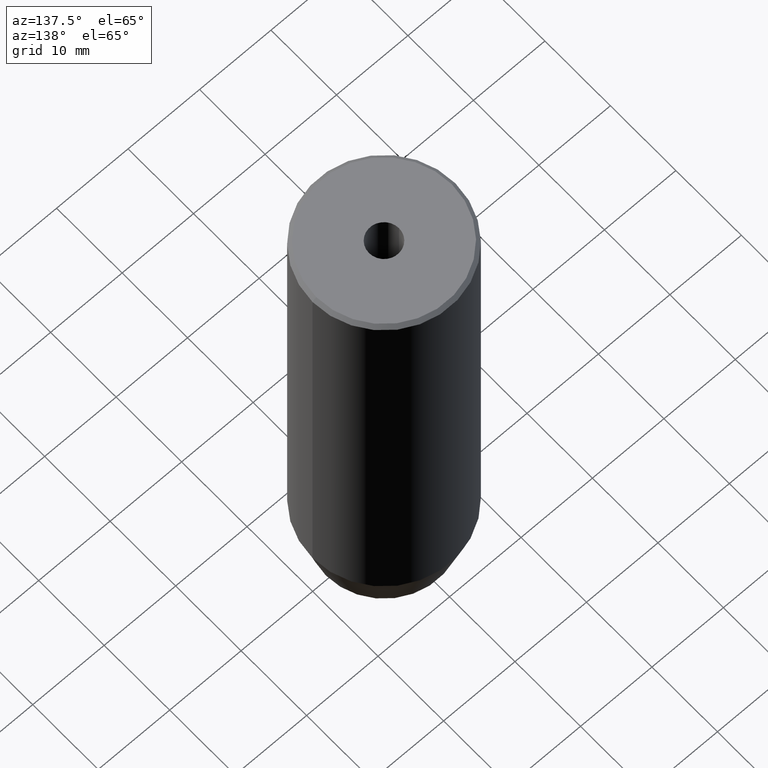
[diagram: clean part render]
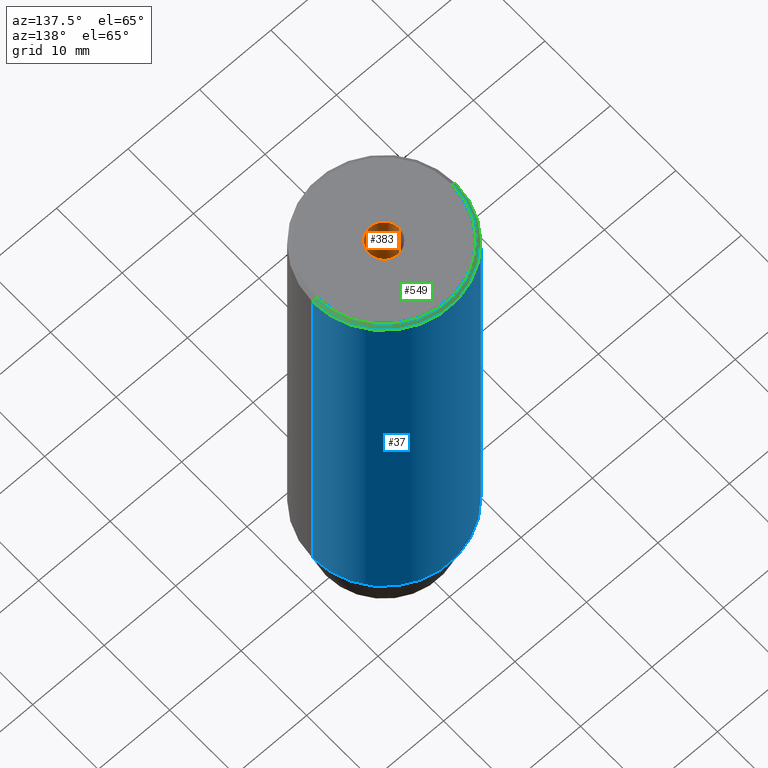
[diagram: same view with three faces highlighted in distinct colors, each labeled with its STEP entity id]
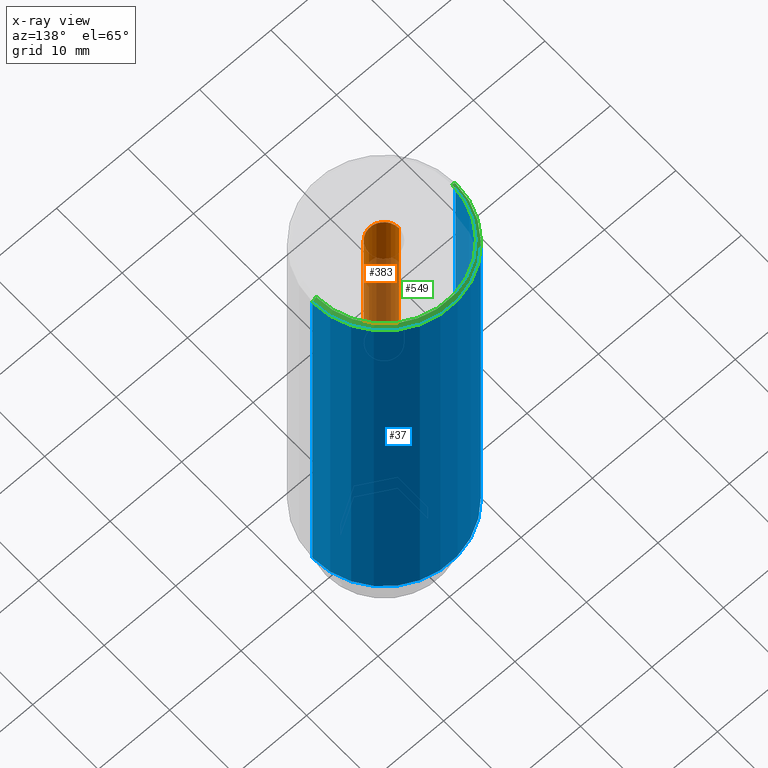
[diagram: x-ray of the same camera — body ghosted, the three highlighted faces saturated]
A machine part, auxiliary view with three faces highlighted in distinct colors.
The next image is the same camera in x-ray (body ghosted, the three faces saturated) — at least one of them is partly hidden behind the body in this view.
Their STEP definitions:

[orange] entity #383 — the highlighted cylindrical surface (edge-blend (fillet) strip) has radius 2.1 mm, axis along (-0, -0, 1).
#2 = DIRECTION ( 'NONE',  ( 1.000000000000000000, 0.000000000000000000, 0.000000000000000000 ) ) ;
#6 = AXIS2_PLACEMENT_3D ( 'NONE', #398, #544, #2 ) ;
#43 = LINE ( 'NONE', #335, #338 ) ;
#44 = EDGE_CURVE ( 'NONE', #253, #206, #43, .T. ) ;
#55 = ORIENTED_EDGE ( 'NONE', *, *, #44, .F. ) ;
#58 = DIRECTION ( 'NONE',  ( -0.000000000000000000, -0.000000000000000000, 1.000000000000000000 ) ) ;
#60 = VERTEX_POINT ( 'NONE', #299 ) ;
#64 = CYLINDRICAL_SURFACE ( 'NONE', #6, 2.099999999999996980 ) ;
#83 = DIRECTION ( 'NONE',  ( -0.000000000000000000, -0.000000000000000000, 1.000000000000000000 ) ) ;
#89 = DIRECTION ( 'NONE',  ( -0.000000000000000000, -0.000000000000000000, 1.000000000000000000 ) ) ;
#95 = CIRCLE ( 'NONE', #570, 2.099999999999995648 ) ;
#114 = EDGE_LOOP ( 'NONE', ( #482, #425, #249, #55 ) ) ;
#116 = EDGE_CURVE ( 'NONE', #60, #525, #563, .T. ) ;
#133 = EDGE_CURVE ( 'NONE', #525, #206, #217, .T. ) ;
#135 = CARTESIAN_POINT ( 'NONE',  ( 0.000000000000000000, 0.000000000000000000, -1.990051048614449116E-16 ) ) ;
#198 = CARTESIAN_POINT ( 'NONE',  ( 2.099999999999998757, 0.000000000000000000, -1.990051048614449116E-16 ) ) ;
#206 = VERTEX_POINT ( 'NONE', #198 ) ;
#217 = CIRCLE ( 'NONE', #333, 2.099999999999998757 ) ;
#249 = ORIENTED_EDGE ( 'NONE', *, *, #133, .T. ) ;
#253 = VERTEX_POINT ( 'NONE', #473 ) ;
#270 = FACE_OUTER_BOUND ( 'NONE', #114, .T. ) ;
#277 = CARTESIAN_POINT ( 'NONE',  ( -2.099999999999998757, 2.571758278209440478E-16, -1.990051048614449116E-16 ) ) ;
#299 = CARTESIAN_POINT ( 'NONE',  ( -2.099999999999995648, 2.571758278209436040E-16, -25.00000000000000000 ) ) ;
#301 = CARTESIAN_POINT ( 'NONE',  ( 0.000000000000000000, 0.000000000000000000, -25.00000000000000000 ) ) ;
#333 = AXIS2_PLACEMENT_3D ( 'NONE', #135, #58, #342 ) ;
#335 = CARTESIAN_POINT ( 'NONE',  ( 2.099999999999996980, 0.000000000000000000, 0.000000000000000000 ) ) ;
#338 = VECTOR ( 'NONE', #89, 1000.000000000000000 ) ;
#342 = DIRECTION ( 'NONE',  ( 1.000000000000000000, 0.000000000000000000, 0.000000000000000000 ) ) ;
#350 = DIRECTION ( 'NONE',  ( 1.000000000000000000, 0.000000000000000000, 0.000000000000000000 ) ) ;
#383 = ADVANCED_FACE ( 'NONE', ( #270 ), #64, .F. ) ;
#398 = CARTESIAN_POINT ( 'NONE',  ( 0.000000000000000000, 0.000000000000000000, 0.000000000000000000 ) ) ;
#425 = ORIENTED_EDGE ( 'NONE', *, *, #116, .T. ) ;
#443 = DIRECTION ( 'NONE',  ( -0.000000000000000000, -0.000000000000000000, 1.000000000000000000 ) ) ;
#473 = CARTESIAN_POINT ( 'NONE',  ( 2.099999999999995648, 0.000000000000000000, -25.00000000000000000 ) ) ;
#482 = ORIENTED_EDGE ( 'NONE', *, *, #573, .F. ) ;
#520 = VECTOR ( 'NONE', #83, 1000.000000000000000 ) ;
#525 = VERTEX_POINT ( 'NONE', #277 ) ;
#544 = DIRECTION ( 'NONE',  ( -0.000000000000000000, -0.000000000000000000, 1.000000000000000000 ) ) ;
#563 = LINE ( 'NONE', #566, #520 ) ;
#566 = CARTESIAN_POINT ( 'NONE',  ( -2.099999999999996980, 2.571758278209438013E-16, 0.000000000000000000 ) ) ;
#570 = AXIS2_PLACEMENT_3D ( 'NONE', #301, #443, #350 ) ;
#573 = EDGE_CURVE ( 'NONE', #60, #253, #95, .T. ) ;

[blue] entity #37 — the highlighted cylindrical surface (partial cylindrical patch) has radius 10 mm, axis along (-0, -0, 1).
#34 = CARTESIAN_POINT ( 'NONE',  ( 0.000000000000000000, 0.000000000000000000, -0.4999999999999917843 ) ) ;
#37 = ADVANCED_FACE ( 'NONE', ( #84 ), #208, .T. ) ;
#48 = AXIS2_PLACEMENT_3D ( 'NONE', #316, #352, #241 ) ;
#84 = FACE_OUTER_BOUND ( 'NONE', #244, .T. ) ;
#85 = LINE ( 'NONE', #413, #94 ) ;
#94 = VECTOR ( 'NONE', #240, 1000.000000000000000 ) ;
#102 = VERTEX_POINT ( 'NONE', #168 ) ;
#138 = DIRECTION ( 'NONE',  ( -0.000000000000000000, -0.000000000000000000, 1.000000000000000000 ) ) ;
#166 = DIRECTION ( 'NONE',  ( 1.000000000000000000, 0.000000000000000000, 0.000000000000000000 ) ) ;
#168 = CARTESIAN_POINT ( 'NONE',  ( 10.00000000000000000, 0.000000000000000000, -63.00000000000000000 ) ) ;
#171 = ORIENTED_EDGE ( 'NONE', *, *, #323, .T. ) ;
#195 = VERTEX_POINT ( 'NONE', #320 ) ;
#202 = DIRECTION ( 'NONE',  ( 0.000000000000000000, 0.000000000000000000, -1.000000000000000000 ) ) ;
#208 = CYLINDRICAL_SURFACE ( 'NONE', #48, 10.00000000000000000 ) ;
#218 = DIRECTION ( 'NONE',  ( -0.000000000000000000, -0.000000000000000000, 1.000000000000000000 ) ) ;
#240 = DIRECTION ( 'NONE',  ( -0.000000000000000000, -0.000000000000000000, 1.000000000000000000 ) ) ;
#241 = DIRECTION ( 'NONE',  ( 1.000000000000000000, 0.000000000000000000, 0.000000000000000000 ) ) ;
#244 = EDGE_LOOP ( 'NONE', ( #171, #271, #380, #283 ) ) ;
#252 = EDGE_CURVE ( 'NONE', #102, #428, #85, .T. ) ;
#259 = CARTESIAN_POINT ( 'NONE',  ( 0.000000000000000000, 0.000000000000000000, -63.00000000000000000 ) ) ;
#271 = ORIENTED_EDGE ( 'NONE', *, *, #518, .T. ) ;
#283 = ORIENTED_EDGE ( 'NONE', *, *, #252, .F. ) ;
#316 = CARTESIAN_POINT ( 'NONE',  ( 0.000000000000000000, 0.000000000000000000, 0.000000000000000000 ) ) ;
#320 = CARTESIAN_POINT ( 'NONE',  ( -10.00000000000000000, 1.224646799147353256E-15, -0.4999999999999917843 ) ) ;
#323 = EDGE_CURVE ( 'NONE', #102, #452, #568, .T. ) ;
#326 = CARTESIAN_POINT ( 'NONE',  ( -10.00000000000000000, 1.224646799147353256E-15, -63.00000000000000000 ) ) ;
#328 = DIRECTION ( 'NONE',  ( 1.000000000000000000, 0.000000000000000000, 0.000000000000000000 ) ) ;
#352 = DIRECTION ( 'NONE',  ( -0.000000000000000000, -0.000000000000000000, 1.000000000000000000 ) ) ;
#380 = ORIENTED_EDGE ( 'NONE', *, *, #445, .T. ) ;
#413 = CARTESIAN_POINT ( 'NONE',  ( 10.00000000000000000, 0.000000000000000000, 0.000000000000000000 ) ) ;
#428 = VERTEX_POINT ( 'NONE', #507 ) ;
#440 = CIRCLE ( 'NONE', #529, 10.00000000000000000 ) ;
#445 = EDGE_CURVE ( 'NONE', #195, #428, #440, .T. ) ;
#452 = VERTEX_POINT ( 'NONE', #326 ) ;
#461 = VECTOR ( 'NONE', #138, 1000.000000000000000 ) ;
#507 = CARTESIAN_POINT ( 'NONE',  ( 10.00000000000000000, 0.000000000000000000, -0.4999999999999917843 ) ) ;
#518 = EDGE_CURVE ( 'NONE', #452, #195, #585, .T. ) ;
#529 = AXIS2_PLACEMENT_3D ( 'NONE', #34, #202, #328 ) ;
#534 = CARTESIAN_POINT ( 'NONE',  ( -10.00000000000000000, 1.224646799147353256E-15, 0.000000000000000000 ) ) ;
#568 = CIRCLE ( 'NONE', #569, 10.00000000000000000 ) ;
#569 = AXIS2_PLACEMENT_3D ( 'NONE', #259, #218, #166 ) ;
#585 = LINE ( 'NONE', #534, #461 ) ;

[green] entity #549 — the highlighted conical surface has half-angle 45 deg.
#16 = FACE_OUTER_BOUND ( 'NONE', #63, .T. ) ;
#33 = DIRECTION ( 'NONE',  ( 0.7071067811865525687, 8.659560562354995721E-17, -0.7071067811865425767 ) ) ;
#34 = CARTESIAN_POINT ( 'NONE',  ( 0.000000000000000000, 0.000000000000000000, -0.4999999999999917843 ) ) ;
#38 = VECTOR ( 'NONE', #33, 999.9999999999998863 ) ;
#63 = EDGE_LOOP ( 'NONE', ( #104, #459, #223, #509 ) ) ;
#100 = AXIS2_PLACEMENT_3D ( 'NONE', #178, #346, #312 ) ;
#104 = ORIENTED_EDGE ( 'NONE', *, *, #137, .F. ) ;
#124 = LINE ( 'NONE', #417, #38 ) ;
#137 = EDGE_CURVE ( 'NONE', #176, #139, #527, .T. ) ;
#139 = VERTEX_POINT ( 'NONE', #390 ) ;
#142 = EDGE_CURVE ( 'NONE', #139, #195, #586, .T. ) ;
#145 = CARTESIAN_POINT ( 'NONE',  ( 9.500000000000001776, 1.194030629168669469E-15, 0.000000000000000000 ) ) ;
#176 = VERTEX_POINT ( 'NONE', #145 ) ;
#177 = CARTESIAN_POINT ( 'NONE',  ( -9.500000000000001776, 0.000000000000000000, 0.000000000000000000 ) ) ;
#178 = CARTESIAN_POINT ( 'NONE',  ( 0.000000000000000000, 0.000000000000000000, 0.000000000000000000 ) ) ;
#195 = VERTEX_POINT ( 'NONE', #320 ) ;
#202 = DIRECTION ( 'NONE',  ( 0.000000000000000000, 0.000000000000000000, -1.000000000000000000 ) ) ;
#223 = ORIENTED_EDGE ( 'NONE', *, *, #445, .F. ) ;
#276 = VECTOR ( 'NONE', #435, 999.9999999999998863 ) ;
#311 = CARTESIAN_POINT ( 'NONE',  ( 0.000000000000000000, 0.000000000000000000, 0.000000000000000000 ) ) ;
#312 = DIRECTION ( 'NONE',  ( -1.000000000000000000, 0.000000000000000000, 0.000000000000000000 ) ) ;
#320 = CARTESIAN_POINT ( 'NONE',  ( -10.00000000000000000, 1.224646799147353256E-15, -0.4999999999999917843 ) ) ;
#328 = DIRECTION ( 'NONE',  ( 1.000000000000000000, 0.000000000000000000, 0.000000000000000000 ) ) ;
#334 = CONICAL_SURFACE ( 'NONE', #100, 9.500000000000001776, 0.7853981633974552734 ) ;
#346 = DIRECTION ( 'NONE',  ( 0.000000000000000000, 0.000000000000000000, -1.000000000000000000 ) ) ;
#390 = CARTESIAN_POINT ( 'NONE',  ( -9.500000000000001776, 0.000000000000000000, 0.000000000000000000 ) ) ;
#407 = AXIS2_PLACEMENT_3D ( 'NONE', #311, #533, #429 ) ;
#417 = CARTESIAN_POINT ( 'NONE',  ( 9.500000000000001776, 1.163414459189985682E-15, 0.000000000000000000 ) ) ;
#421 = EDGE_CURVE ( 'NONE', #176, #428, #124, .T. ) ;
#428 = VERTEX_POINT ( 'NONE', #507 ) ;
#429 = DIRECTION ( 'NONE',  ( 1.000000000000000000, 0.000000000000000000, 0.000000000000000000 ) ) ;
#435 = DIRECTION ( 'NONE',  ( -0.7071067811865525687, 0.000000000000000000, -0.7071067811865425767 ) ) ;
#440 = CIRCLE ( 'NONE', #529, 10.00000000000000000 ) ;
#445 = EDGE_CURVE ( 'NONE', #195, #428, #440, .T. ) ;
#459 = ORIENTED_EDGE ( 'NONE', *, *, #421, .T. ) ;
#507 = CARTESIAN_POINT ( 'NONE',  ( 10.00000000000000000, 0.000000000000000000, -0.4999999999999917843 ) ) ;
#509 = ORIENTED_EDGE ( 'NONE', *, *, #142, .F. ) ;
#527 = CIRCLE ( 'NONE', #407, 9.500000000000001776 ) ;
#529 = AXIS2_PLACEMENT_3D ( 'NONE', #34, #202, #328 ) ;
#533 = DIRECTION ( 'NONE',  ( -0.000000000000000000, -0.000000000000000000, 1.000000000000000000 ) ) ;
#549 = ADVANCED_FACE ( 'NONE', ( #16 ), #334, .T. ) ;
#586 = LINE ( 'NONE', #177, #276 ) ;